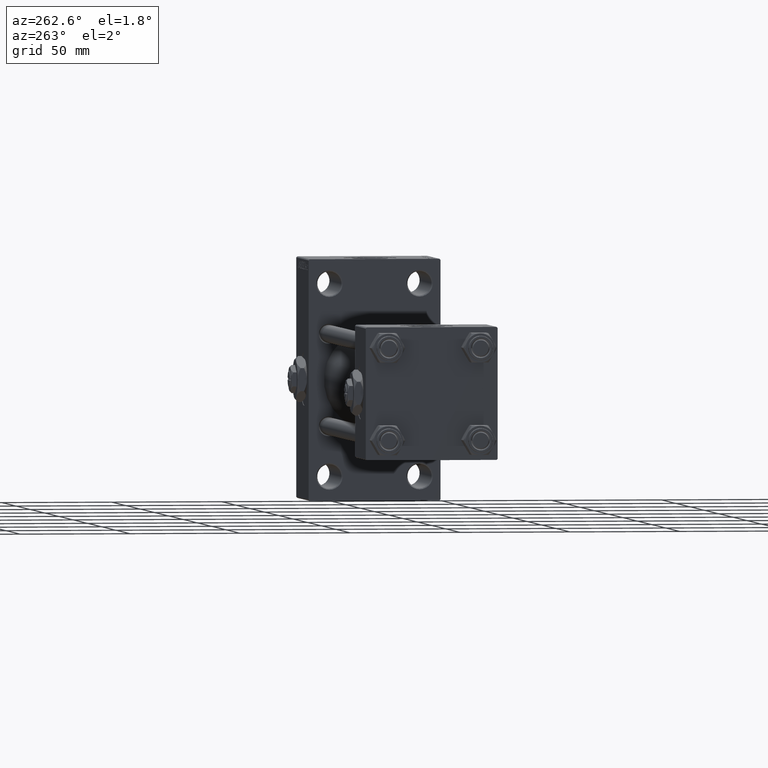
[diagram: clean part render]
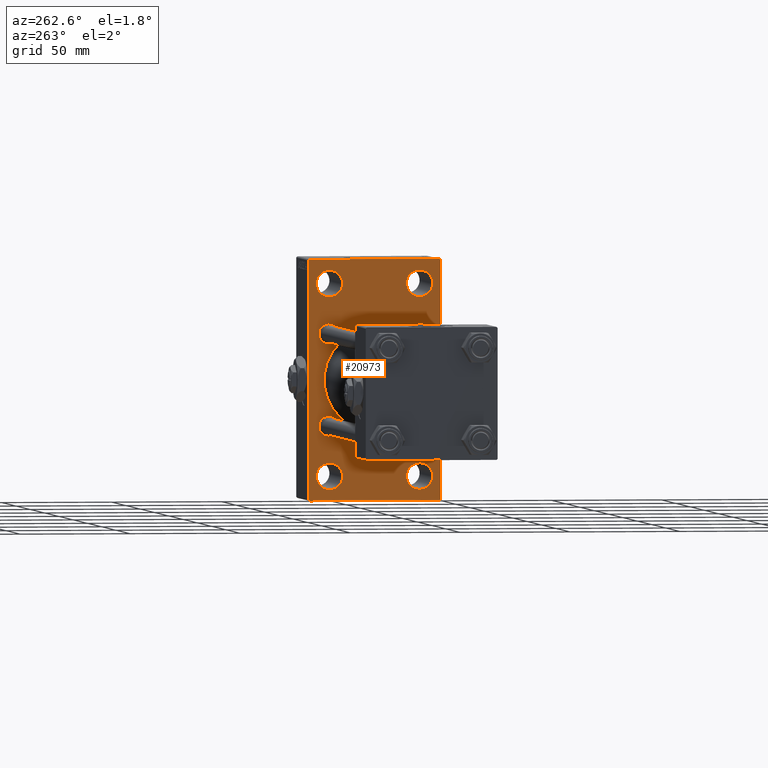
[diagram: same view with one face highlighted and labeled with its STEP entity id]
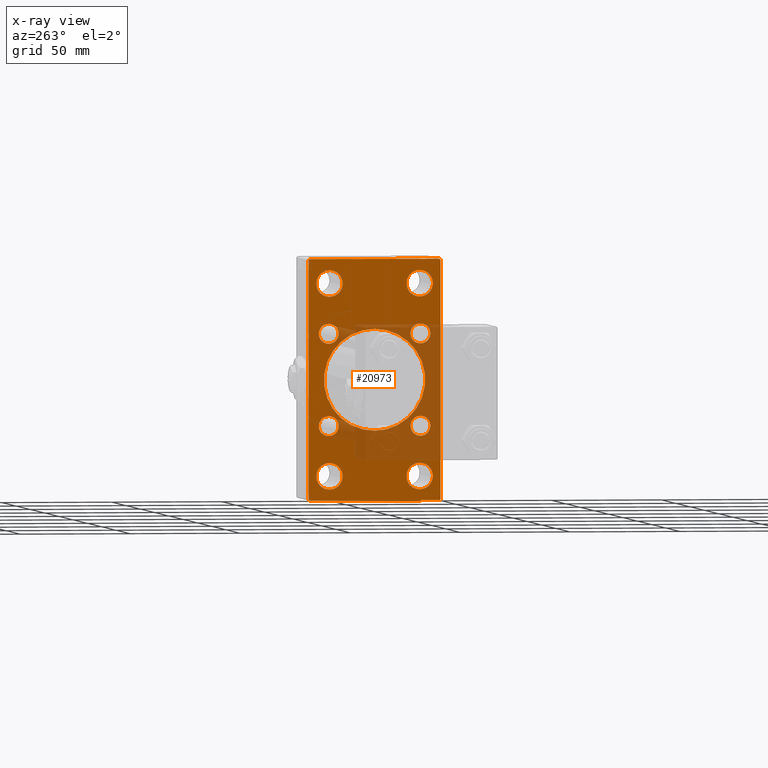
[diagram: x-ray of the same camera — body ghosted, the highlighted face saturated]
A machine part, auxiliary view. The second image highlights one B-rep face of the part: STEP entity #20973.
The next image is the same camera in x-ray: the body ghosted, the highlighted face saturated — about 27% of this face is hidden behind the body in this view.
In plain terms, the highlighted planar face has unit normal (-1, 0, 0).
Its self-contained STEP definition (entity closure, byte-faithful):
#76 = DIRECTION ( 'NONE',  ( 0.000000000000000000, 0.000000000000000000, 1.000000000000000000 ) ) ;
#146 = DIRECTION ( 'NONE',  ( 1.000000000000000000, -0.000000000000000000, 0.000000000000000000 ) ) ;
#213 = CIRCLE ( 'NONE', #21100, 4.500000000000007105 ) ;
#318 = CARTESIAN_POINT ( 'NONE',  ( 200.0000000000000000, -20.50000000000000000, 49.49999999999997158 ) ) ;
#599 = FACE_BOUND ( 'NONE', #6965, .T. ) ;
#798 = CARTESIAN_POINT ( 'NONE',  ( 200.0000000000000000, 29.99999999999999645, -54.49999999999999289 ) ) ;
#947 = DIRECTION ( 'NONE',  ( 0.000000000000000000, 0.000000000000000000, 1.000000000000000000 ) ) ;
#1087 = AXIS2_PLACEMENT_3D ( 'NONE', #5978, #36670, #4998 ) ;
#1454 = EDGE_CURVE ( 'NONE', #9639, #1969, #6058, .T. ) ;
#1476 = CARTESIAN_POINT ( 'NONE',  ( 200.0000000000000000, -20.84999999999999076, -25.35000000000001208 ) ) ;
#1497 = CARTESIAN_POINT ( 'NONE',  ( 200.0000000000000000, 29.49999999999999645, 54.49999999999999289 ) ) ;
#1547 = CARTESIAN_POINT ( 'NONE',  ( 200.0000000000000000, 20.84999999999999787, 20.85000000000000142 ) ) ;
#1735 = EDGE_CURVE ( 'NONE', #5802, #15726, #22114, .T. ) ;
#1824 = VECTOR ( 'NONE', #47944, 1000.000000000000114 ) ;
#1833 = AXIS2_PLACEMENT_3D ( 'NONE', #31418, #46757, #24110 ) ;
#1880 = DIRECTION ( 'NONE',  ( 0.000000000000000000, 0.000000000000000000, 1.000000000000000000 ) ) ;
#1909 = CARTESIAN_POINT ( 'NONE',  ( 200.0000000000000000, 29.99999999999999645, -53.99999999999999289 ) ) ;
#1969 = VERTEX_POINT ( 'NONE', #8865 ) ;
#2582 = AXIS2_PLACEMENT_3D ( 'NONE', #21705, #17926, #10622 ) ;
#2627 = DIRECTION ( 'NONE',  ( 0.000000000000000000, 0.000000000000000000, 1.000000000000000000 ) ) ;
#2683 = CARTESIAN_POINT ( 'NONE',  ( 200.0000000000000000, 29.99999999999999645, 53.99999999999996447 ) ) ;
#2896 = CARTESIAN_POINT ( 'NONE',  ( 200.0000000000000000, 29.49999999999996803, -54.49999999999999289 ) ) ;
#2915 = LINE ( 'NONE', #41638, #39993 ) ;
#2987 = ORIENTED_EDGE ( 'NONE', *, *, #20314, .T. ) ;
#3259 = EDGE_LOOP ( 'NONE', ( #31904, #34449 ) ) ;
#3850 = CARTESIAN_POINT ( 'NONE',  ( 200.0000000000000000, -20.50000000000000000, -43.50000000000000000 ) ) ;
#3858 = VERTEX_POINT ( 'NONE', #11922 ) ;
#4286 = EDGE_CURVE ( 'NONE', #17386, #25490, #49298, .T. ) ;
#4621 = FACE_BOUND ( 'NONE', #21815, .T. ) ;
#4647 = VERTEX_POINT ( 'NONE', #46198 ) ;
#4801 = ORIENTED_EDGE ( 'NONE', *, *, #5648, .T. ) ;
#4922 = DIRECTION ( 'NONE',  ( 0.000000000000000000, 0.7071067811865279218, -0.7071067811865672237 ) ) ;
#4958 = CARTESIAN_POINT ( 'NONE',  ( 200.0000000000000000, -2.602085213965210642E-15, 23.00000000000000000 ) ) ;
#4998 = DIRECTION ( 'NONE',  ( 0.000000000000000000, 0.000000000000000000, 1.000000000000000000 ) ) ;
#5095 = DIRECTION ( 'NONE',  ( 0.000000000000000000, 0.000000000000000000, 1.000000000000000000 ) ) ;
#5282 = AXIS2_PLACEMENT_3D ( 'NONE', #32860, #48214, #37136 ) ;
#5424 = ORIENTED_EDGE ( 'NONE', *, *, #10988, .F. ) ;
#5522 = CARTESIAN_POINT ( 'NONE',  ( 200.0000000000000000, 20.50000000000000000, 43.50000000000000000 ) ) ;
#5593 = CIRCLE ( 'NONE', #47358, 4.500000000000007105 ) ;
#5648 = EDGE_CURVE ( 'NONE', #19727, #48661, #10077, .T. ) ;
#5732 = ORIENTED_EDGE ( 'NONE', *, *, #15523, .F. ) ;
#5786 = ORIENTED_EDGE ( 'NONE', *, *, #16438, .T. ) ;
#5802 = VERTEX_POINT ( 'NONE', #8712 ) ;
#5847 = LINE ( 'NONE', #32995, #10226 ) ;
#5978 = CARTESIAN_POINT ( 'NONE',  ( 200.0000000000000000, -20.50000000000000000, 43.50000000000000000 ) ) ;
#6058 = CIRCLE ( 'NONE', #14095, 5.999999999999977796 ) ;
#6894 = DIRECTION ( 'NONE',  ( 1.000000000000000000, 0.000000000000000000, 0.000000000000000000 ) ) ;
#6965 = EDGE_LOOP ( 'NONE', ( #38444, #46696 ) ) ;
#7062 = CARTESIAN_POINT ( 'NONE',  ( 200.0000000000000000, 20.50000000000000000, -37.50000000000002132 ) ) ;
#7172 = DIRECTION ( 'NONE',  ( 0.000000000000000000, 0.000000000000000000, -1.000000000000000000 ) ) ;
#7382 = CARTESIAN_POINT ( 'NONE',  ( 200.0000000000000000, -2.602085213965210642E-15, 0.000000000000000000 ) ) ;
#7606 = DIRECTION ( 'NONE',  ( 0.000000000000000000, -1.000000000000000000, 1.156482317317871478E-16 ) ) ;
#7802 = VERTEX_POINT ( 'NONE', #42260 ) ;
#7983 = CARTESIAN_POINT ( 'NONE',  ( 200.0000000000000000, -20.50000000000000000, -43.50000000000000000 ) ) ;
#8340 = DIRECTION ( 'NONE',  ( 1.000000000000000000, -0.000000000000000000, 0.000000000000000000 ) ) ;
#8382 = ORIENTED_EDGE ( 'NONE', *, *, #16767, .T. ) ;
#8683 = CARTESIAN_POINT ( 'NONE',  ( 200.0000000000000000, 42.00000000000081002, 41.99999999999847944 ) ) ;
#8696 = CARTESIAN_POINT ( 'NONE',  ( 200.0000000000000000, -30.00000000000000000, 54.00000000000002842 ) ) ;
#8712 = CARTESIAN_POINT ( 'NONE',  ( 200.0000000000000000, 20.50000000000000000, 49.49999999999997158 ) ) ;
#8783 = ORIENTED_EDGE ( 'NONE', *, *, #18531, .T. ) ;
#8865 = CARTESIAN_POINT ( 'NONE',  ( 200.0000000000000000, -20.50000000000000000, -37.50000000000002132 ) ) ;
#9058 = VERTEX_POINT ( 'NONE', #21050 ) ;
#9639 = VERTEX_POINT ( 'NONE', #32649 ) ;
#9888 = CIRCLE ( 'NONE', #1087, 5.999999999999977796 ) ;
#10004 = EDGE_LOOP ( 'NONE', ( #24123, #8382 ) ) ;
#10026 = VERTEX_POINT ( 'NONE', #318 ) ;
#10077 = CIRCLE ( 'NONE', #32584, 4.500000000000007105 ) ;
#10087 = AXIS2_PLACEMENT_3D ( 'NONE', #5522, #39496, #20865 ) ;
#10226 = VECTOR ( 'NONE', #18399, 1000.000000000000000 ) ;
#10391 = CARTESIAN_POINT ( 'NONE',  ( 200.0000000000000000, -20.84999999999999076, 20.85000000000000497 ) ) ;
#10589 = CARTESIAN_POINT ( 'NONE',  ( 200.0000000000000000, -20.84999999999999076, 25.35000000000001208 ) ) ;
#10622 = DIRECTION ( 'NONE',  ( 0.000000000000000000, 0.000000000000000000, 1.000000000000000000 ) ) ;
#10887 = DIRECTION ( 'NONE',  ( 1.000000000000000000, -0.000000000000000000, 0.000000000000000000 ) ) ;
#10988 = EDGE_CURVE ( 'NONE', #25407, #4647, #2915, .T. ) ;
#11056 = CARTESIAN_POINT ( 'NONE',  ( 200.0000000000000000, 29.99999999999999645, 54.49999999999999289 ) ) ;
#11114 = AXIS2_PLACEMENT_3D ( 'NONE', #39123, #146, #15477 ) ;
#11225 = AXIS2_PLACEMENT_3D ( 'NONE', #43517, #41166, #33361 ) ;
#11858 = LINE ( 'NONE', #798, #49749 ) ;
#11922 = CARTESIAN_POINT ( 'NONE',  ( 200.0000000000000000, 20.84999999999999787, -16.34999999999999432 ) ) ;
#12161 = FACE_BOUND ( 'NONE', #31576, .T. ) ;
#12289 = CARTESIAN_POINT ( 'NONE',  ( 200.0000000000000000, 20.84999999999999787, -25.35000000000000853 ) ) ;
#12318 = CARTESIAN_POINT ( 'NONE',  ( 200.0000000000000000, 20.84999999999999787, 25.35000000000000853 ) ) ;
#12357 = DIRECTION ( 'NONE',  ( 0.000000000000000000, -1.000000000000000000, -1.156482317317871478E-16 ) ) ;
#12365 = EDGE_CURVE ( 'NONE', #9058, #16794, #35216, .T. ) ;
#12551 = ORIENTED_EDGE ( 'NONE', *, *, #41902, .T. ) ;
#12557 = CARTESIAN_POINT ( 'NONE',  ( 200.0000000000000000, -29.50000000000002842, -54.50000000000000000 ) ) ;
#12989 = VERTEX_POINT ( 'NONE', #38511 ) ;
#13239 = EDGE_CURVE ( 'NONE', #29844, #17386, #34863, .T. ) ;
#13291 = VERTEX_POINT ( 'NONE', #44621 ) ;
#13312 = CIRCLE ( 'NONE', #10087, 5.999999999999977796 ) ;
#14095 = AXIS2_PLACEMENT_3D ( 'NONE', #7983, #35403, #947 ) ;
#14133 = AXIS2_PLACEMENT_3D ( 'NONE', #47119, #25139, #24219 ) ;
#14610 = ORIENTED_EDGE ( 'NONE', *, *, #14836, .T. ) ;
#14836 = EDGE_CURVE ( 'NONE', #34832, #48914, #11858, .T. ) ;
#14935 = CARTESIAN_POINT ( 'NONE',  ( 200.0000000000000000, -20.84999999999999076, -16.34999999999999787 ) ) ;
#15477 = DIRECTION ( 'NONE',  ( 0.000000000000000000, 0.000000000000000000, 1.000000000000000000 ) ) ;
#15523 = EDGE_CURVE ( 'NONE', #29844, #12989, #41832, .T. ) ;
#15726 = VERTEX_POINT ( 'NONE', #35774 ) ;
#15933 = FACE_BOUND ( 'NONE', #3259, .T. ) ;
#16438 = EDGE_CURVE ( 'NONE', #1969, #9639, #23999, .T. ) ;
#16441 = ORIENTED_EDGE ( 'NONE', *, *, #36777, .T. ) ;
#16533 = EDGE_CURVE ( 'NONE', #7802, #10026, #41789, .T. ) ;
#16767 = EDGE_CURVE ( 'NONE', #47045, #33946, #30428, .T. ) ;
#16794 = VERTEX_POINT ( 'NONE', #7062 ) ;
#17065 = CIRCLE ( 'NONE', #1833, 5.999999999999977796 ) ;
#17386 = VERTEX_POINT ( 'NONE', #2683 ) ;
#17926 = DIRECTION ( 'NONE',  ( 1.000000000000000000, -0.000000000000000000, 0.000000000000000000 ) ) ;
#18259 = ORIENTED_EDGE ( 'NONE', *, *, #33009, .T. ) ;
#18385 = DIRECTION ( 'NONE',  ( 0.000000000000000000, 0.000000000000000000, 1.000000000000000000 ) ) ;
#18399 = DIRECTION ( 'NONE',  ( 0.000000000000000000, -0.7071067811865352493, 0.7071067811865597852 ) ) ;
#18531 = EDGE_CURVE ( 'NONE', #48661, #19727, #33344, .T. ) ;
#19185 = DIRECTION ( 'NONE',  ( 1.000000000000000000, -0.000000000000000000, 0.000000000000000000 ) ) ;
#19452 = CARTESIAN_POINT ( 'NONE',  ( 200.0000000000000000, 2.146024240737016609E-16, -23.00000000000000000 ) ) ;
#19727 = VERTEX_POINT ( 'NONE', #10589 ) ;
#19912 = EDGE_CURVE ( 'NONE', #15726, #5802, #13312, .T. ) ;
#19959 = FACE_OUTER_BOUND ( 'NONE', #29401, .T. ) ;
#20058 = ORIENTED_EDGE ( 'NONE', *, *, #43808, .T. ) ;
#20314 = EDGE_CURVE ( 'NONE', #20830, #30136, #43837, .T. ) ;
#20434 = CARTESIAN_POINT ( 'NONE',  ( 200.0000000000000000, -20.50000000000000000, 43.50000000000000000 ) ) ;
#20823 = EDGE_CURVE ( 'NONE', #30136, #20830, #22187, .T. ) ;
#20830 = VERTEX_POINT ( 'NONE', #19452 ) ;
#20865 = DIRECTION ( 'NONE',  ( 0.000000000000000000, 0.000000000000000000, 1.000000000000000000 ) ) ;
#20973 = ADVANCED_FACE ( 'NONE', ( #35056, #39331, #15933, #21130, #4621, #599, #36478, #39579, #12161, #19959 ), #31281, .T. ) ;
#20984 = DIRECTION ( 'NONE',  ( 1.000000000000000000, -0.000000000000000000, 0.000000000000000000 ) ) ;
#21050 = CARTESIAN_POINT ( 'NONE',  ( 200.0000000000000000, 20.50000000000000000, -49.49999999999997158 ) ) ;
#21100 = AXIS2_PLACEMENT_3D ( 'NONE', #1547, #8340, #35511 ) ;
#21130 = FACE_BOUND ( 'NONE', #47983, .T. ) ;
#21705 = CARTESIAN_POINT ( 'NONE',  ( 200.0000000000000000, 20.84999999999999787, -20.85000000000000142 ) ) ;
#21713 = AXIS2_PLACEMENT_3D ( 'NONE', #37500, #42265, #18385 ) ;
#21815 = EDGE_LOOP ( 'NONE', ( #4801, #8783 ) ) ;
#22081 = DIRECTION ( 'NONE',  ( 0.000000000000000000, 0.000000000000000000, 1.000000000000000000 ) ) ;
#22114 = CIRCLE ( 'NONE', #35806, 5.999999999999977796 ) ;
#22187 = CIRCLE ( 'NONE', #44654, 23.00000000000000000 ) ;
#22637 = CIRCLE ( 'NONE', #2582, 4.500000000000007105 ) ;
#23132 = ORIENTED_EDGE ( 'NONE', *, *, #16533, .T. ) ;
#23597 = EDGE_CURVE ( 'NONE', #48914, #4647, #5847, .T. ) ;
#23904 = DIRECTION ( 'NONE',  ( -0.000000000000000000, -0.7071067811865672237, -0.7071067811865279218 ) ) ;
#23999 = CIRCLE ( 'NONE', #36858, 5.999999999999977796 ) ;
#24105 = AXIS2_PLACEMENT_3D ( 'NONE', #20434, #28218, #5095 ) ;
#24110 = DIRECTION ( 'NONE',  ( 0.000000000000000000, 0.000000000000000000, 1.000000000000000000 ) ) ;
#24123 = ORIENTED_EDGE ( 'NONE', *, *, #32143, .T. ) ;
#24219 = DIRECTION ( 'NONE',  ( -0.000000000000000000, 0.000000000000000000, 1.000000000000000000 ) ) ;
#24927 = DIRECTION ( 'NONE',  ( 1.000000000000000000, -0.000000000000000000, 0.000000000000000000 ) ) ;
#25139 = DIRECTION ( 'NONE',  ( -1.000000000000000000, 0.000000000000000000, -0.000000000000000000 ) ) ;
#25407 = VERTEX_POINT ( 'NONE', #8696 ) ;
#25490 = VERTEX_POINT ( 'NONE', #1909 ) ;
#25850 = ORIENTED_EDGE ( 'NONE', *, *, #4286, .T. ) ;
#25897 = DIRECTION ( 'NONE',  ( 0.000000000000000000, 0.000000000000000000, -1.000000000000000000 ) ) ;
#26863 = VECTOR ( 'NONE', #25897, 1000.000000000000000 ) ;
#26880 = EDGE_LOOP ( 'NONE', ( #16441, #20058 ) ) ;
#27428 = CARTESIAN_POINT ( 'NONE',  ( 200.0000000000000000, 41.99999999999915445, -42.00000000000149214 ) ) ;
#28176 = LINE ( 'NONE', #27428, #47387 ) ;
#28218 = DIRECTION ( 'NONE',  ( 1.000000000000000000, -0.000000000000000000, 0.000000000000000000 ) ) ;
#29191 = ORIENTED_EDGE ( 'NONE', *, *, #1735, .T. ) ;
#29401 = EDGE_LOOP ( 'NONE', ( #14610, #30950, #5424, #12551, #5732, #37207, #25850, #18259 ) ) ;
#29739 = CIRCLE ( 'NONE', #21713, 4.500000000000007105 ) ;
#29797 = VERTEX_POINT ( 'NONE', #12318 ) ;
#29844 = VERTEX_POINT ( 'NONE', #1497 ) ;
#30136 = VERTEX_POINT ( 'NONE', #4958 ) ;
#30428 = CIRCLE ( 'NONE', #39380, 4.500000000000007105 ) ;
#30950 = ORIENTED_EDGE ( 'NONE', *, *, #23597, .T. ) ;
#31281 = PLANE ( 'NONE',  #14133 ) ;
#31418 = CARTESIAN_POINT ( 'NONE',  ( 200.0000000000000000, 20.50000000000000000, -43.50000000000000000 ) ) ;
#31553 = EDGE_CURVE ( 'NONE', #29797, #13291, #5593, .T. ) ;
#31576 = EDGE_LOOP ( 'NONE', ( #33817, #2987 ) ) ;
#31904 = ORIENTED_EDGE ( 'NONE', *, *, #49761, .T. ) ;
#32143 = EDGE_CURVE ( 'NONE', #33946, #47045, #33704, .T. ) ;
#32320 = EDGE_LOOP ( 'NONE', ( #5786, #33212 ) ) ;
#32559 = AXIS2_PLACEMENT_3D ( 'NONE', #10391, #10887, #48883 ) ;
#32584 = AXIS2_PLACEMENT_3D ( 'NONE', #41697, #45214, #22081 ) ;
#32649 = CARTESIAN_POINT ( 'NONE',  ( 200.0000000000000000, -20.50000000000000000, -49.49999999999997158 ) ) ;
#32717 = CARTESIAN_POINT ( 'NONE',  ( 200.0000000000000000, -20.84999999999999076, 16.34999999999999787 ) ) ;
#32860 = CARTESIAN_POINT ( 'NONE',  ( 200.0000000000000000, -2.602085213965210642E-15, 0.000000000000000000 ) ) ;
#32995 = CARTESIAN_POINT ( 'NONE',  ( 200.0000000000000000, -42.00000000000052580, -41.99999999999906919 ) ) ;
#33009 = EDGE_CURVE ( 'NONE', #25490, #34832, #28176, .T. ) ;
#33212 = ORIENTED_EDGE ( 'NONE', *, *, #1454, .T. ) ;
#33344 = CIRCLE ( 'NONE', #32559, 4.500000000000007105 ) ;
#33361 = DIRECTION ( 'NONE',  ( 0.000000000000000000, 0.000000000000000000, 1.000000000000000000 ) ) ;
#33704 = CIRCLE ( 'NONE', #11225, 4.500000000000007105 ) ;
#33817 = ORIENTED_EDGE ( 'NONE', *, *, #20823, .T. ) ;
#33946 = VERTEX_POINT ( 'NONE', #14935 ) ;
#34449 = ORIENTED_EDGE ( 'NONE', *, *, #12365, .T. ) ;
#34832 = VERTEX_POINT ( 'NONE', #2896 ) ;
#34863 = LINE ( 'NONE', #8683, #46484 ) ;
#35056 = FACE_BOUND ( 'NONE', #48786, .T. ) ;
#35216 = CIRCLE ( 'NONE', #11114, 5.999999999999977796 ) ;
#35354 = VERTEX_POINT ( 'NONE', #12289 ) ;
#35403 = DIRECTION ( 'NONE',  ( 1.000000000000000000, -0.000000000000000000, 0.000000000000000000 ) ) ;
#35511 = DIRECTION ( 'NONE',  ( 0.000000000000000000, 0.000000000000000000, 1.000000000000000000 ) ) ;
#35774 = CARTESIAN_POINT ( 'NONE',  ( 200.0000000000000000, 20.50000000000000000, 37.50000000000002132 ) ) ;
#35806 = AXIS2_PLACEMENT_3D ( 'NONE', #40603, #20984, #1880 ) ;
#36385 = LINE ( 'NONE', #40411, #1824 ) ;
#36478 = FACE_BOUND ( 'NONE', #26880, .T. ) ;
#36670 = DIRECTION ( 'NONE',  ( 1.000000000000000000, -0.000000000000000000, 0.000000000000000000 ) ) ;
#36777 = EDGE_CURVE ( 'NONE', #3858, #35354, #22637, .T. ) ;
#36858 = AXIS2_PLACEMENT_3D ( 'NONE', #3850, #19185, #76 ) ;
#37136 = DIRECTION ( 'NONE',  ( 0.000000000000000000, 0.000000000000000000, -1.000000000000000000 ) ) ;
#37207 = ORIENTED_EDGE ( 'NONE', *, *, #13239, .T. ) ;
#37500 = CARTESIAN_POINT ( 'NONE',  ( 200.0000000000000000, 20.84999999999999787, -20.85000000000000142 ) ) ;
#37551 = CARTESIAN_POINT ( 'NONE',  ( 200.0000000000000000, 29.99999999999999645, 54.49999999999999289 ) ) ;
#38444 = ORIENTED_EDGE ( 'NONE', *, *, #31553, .T. ) ;
#38511 = CARTESIAN_POINT ( 'NONE',  ( 200.0000000000000000, -29.50000000000000355, 54.50000000000000000 ) ) ;
#39123 = CARTESIAN_POINT ( 'NONE',  ( 200.0000000000000000, 20.50000000000000000, -43.50000000000000000 ) ) ;
#39203 = ORIENTED_EDGE ( 'NONE', *, *, #19912, .T. ) ;
#39331 = FACE_BOUND ( 'NONE', #32320, .T. ) ;
#39380 = AXIS2_PLACEMENT_3D ( 'NONE', #41036, #24927, #44297 ) ;
#39496 = DIRECTION ( 'NONE',  ( 1.000000000000000000, -0.000000000000000000, 0.000000000000000000 ) ) ;
#39579 = FACE_BOUND ( 'NONE', #10004, .T. ) ;
#39955 = EDGE_CURVE ( 'NONE', #10026, #7802, #9888, .T. ) ;
#39993 = VECTOR ( 'NONE', #7172, 1000.000000000000000 ) ;
#40411 = CARTESIAN_POINT ( 'NONE',  ( 200.0000000000000000, -41.99999999999928235, 42.00000000000132871 ) ) ;
#40603 = CARTESIAN_POINT ( 'NONE',  ( 200.0000000000000000, 20.50000000000000000, 43.50000000000000000 ) ) ;
#41036 = CARTESIAN_POINT ( 'NONE',  ( 200.0000000000000000, -20.84999999999999076, -20.85000000000000497 ) ) ;
#41166 = DIRECTION ( 'NONE',  ( 1.000000000000000000, -0.000000000000000000, 0.000000000000000000 ) ) ;
#41638 = CARTESIAN_POINT ( 'NONE',  ( 200.0000000000000000, -30.00000000000000000, 54.50000000000000000 ) ) ;
#41697 = CARTESIAN_POINT ( 'NONE',  ( 200.0000000000000000, -20.84999999999999076, 20.85000000000000497 ) ) ;
#41789 = CIRCLE ( 'NONE', #24105, 5.999999999999977796 ) ;
#41832 = LINE ( 'NONE', #37551, #42893 ) ;
#41846 = DIRECTION ( 'NONE',  ( 1.000000000000000000, -0.000000000000000000, 0.000000000000000000 ) ) ;
#41902 = EDGE_CURVE ( 'NONE', #25407, #12989, #36385, .T. ) ;
#42105 = DIRECTION ( 'NONE',  ( 0.000000000000000000, 0.000000000000000000, -1.000000000000000000 ) ) ;
#42260 = CARTESIAN_POINT ( 'NONE',  ( 200.0000000000000000, -20.50000000000000000, 37.50000000000002132 ) ) ;
#42265 = DIRECTION ( 'NONE',  ( 1.000000000000000000, -0.000000000000000000, 0.000000000000000000 ) ) ;
#42893 = VECTOR ( 'NONE', #7606, 1000.000000000000000 ) ;
#43517 = CARTESIAN_POINT ( 'NONE',  ( 200.0000000000000000, -20.84999999999999076, -20.85000000000000497 ) ) ;
#43808 = EDGE_CURVE ( 'NONE', #35354, #3858, #29739, .T. ) ;
#43837 = CIRCLE ( 'NONE', #5282, 23.00000000000000000 ) ;
#44297 = DIRECTION ( 'NONE',  ( 0.000000000000000000, 0.000000000000000000, 1.000000000000000000 ) ) ;
#44621 = CARTESIAN_POINT ( 'NONE',  ( 200.0000000000000000, 20.84999999999999787, 16.34999999999999432 ) ) ;
#44654 = AXIS2_PLACEMENT_3D ( 'NONE', #7382, #6894, #42105 ) ;
#45214 = DIRECTION ( 'NONE',  ( 1.000000000000000000, -0.000000000000000000, 0.000000000000000000 ) ) ;
#46198 = CARTESIAN_POINT ( 'NONE',  ( 200.0000000000000000, -30.00000000000000000, -54.00000000000001421 ) ) ;
#46484 = VECTOR ( 'NONE', #4922, 1000.000000000000000 ) ;
#46696 = ORIENTED_EDGE ( 'NONE', *, *, #49384, .T. ) ;
#46757 = DIRECTION ( 'NONE',  ( 1.000000000000000000, -0.000000000000000000, 0.000000000000000000 ) ) ;
#47045 = VERTEX_POINT ( 'NONE', #1476 ) ;
#47119 = CARTESIAN_POINT ( 'NONE',  ( 200.0000000000000000, 0.000000000000000000, 0.000000000000000000 ) ) ;
#47358 = AXIS2_PLACEMENT_3D ( 'NONE', #49137, #41846, #2627 ) ;
#47387 = VECTOR ( 'NONE', #23904, 1000.000000000000000 ) ;
#47944 = DIRECTION ( 'NONE',  ( -0.000000000000000000, 0.7071067811865647812, 0.7071067811865302533 ) ) ;
#47983 = EDGE_LOOP ( 'NONE', ( #29191, #39203 ) ) ;
#48214 = DIRECTION ( 'NONE',  ( 1.000000000000000000, 0.000000000000000000, 0.000000000000000000 ) ) ;
#48661 = VERTEX_POINT ( 'NONE', #32717 ) ;
#48786 = EDGE_LOOP ( 'NONE', ( #49690, #23132 ) ) ;
#48883 = DIRECTION ( 'NONE',  ( 0.000000000000000000, 0.000000000000000000, 1.000000000000000000 ) ) ;
#48914 = VERTEX_POINT ( 'NONE', #12557 ) ;
#49137 = CARTESIAN_POINT ( 'NONE',  ( 200.0000000000000000, 20.84999999999999787, 20.85000000000000142 ) ) ;
#49298 = LINE ( 'NONE', #11056, #26863 ) ;
#49384 = EDGE_CURVE ( 'NONE', #13291, #29797, #213, .T. ) ;
#49690 = ORIENTED_EDGE ( 'NONE', *, *, #39955, .T. ) ;
#49749 = VECTOR ( 'NONE', #12357, 1000.000000000000000 ) ;
#49761 = EDGE_CURVE ( 'NONE', #16794, #9058, #17065, .T. ) ;